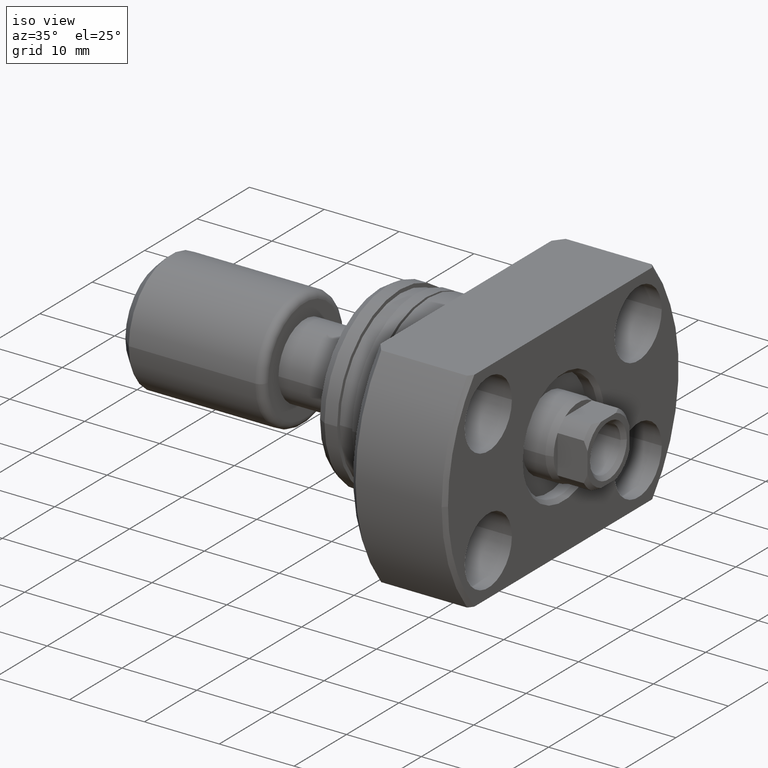
[diagram: clean part render]
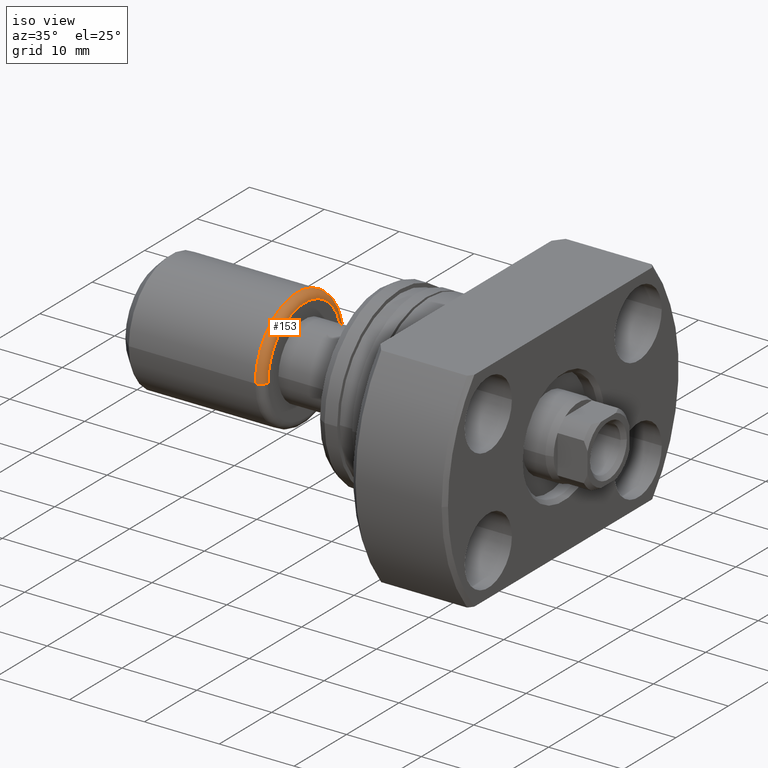
[diagram: same view with one face highlighted and labeled with its STEP entity id]
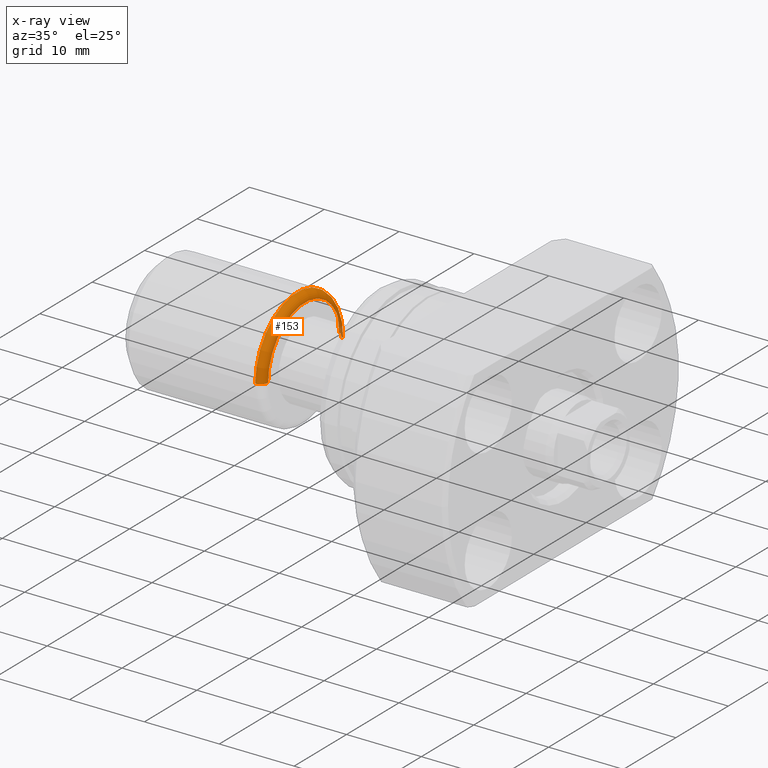
[diagram: x-ray of the same camera — body ghosted, the highlighted face saturated]
A machine part, iso view. The second image highlights one B-rep face of the part: STEP entity #153.
The next image is the same camera in x-ray: the body ghosted, the highlighted face saturated — about 2% of this face is hidden behind the body in this view.
In plain terms, the highlighted toroidal blend (fillet) surface has major radius 7 mm and minor (blend) radius 1 mm.
Its self-contained STEP definition (entity closure, byte-faithful):
#1 = DIRECTION ( 'NONE',  ( 1.069542322069065801E-17, -1.000000000000000000, 0.000000000000000000 ) ) ;
#153 = ADVANCED_FACE ( 'NONE', ( #205 ), #2859, .T. ) ;
#165 = CARTESIAN_POINT ( 'NONE',  ( 18.40000000000006253, 1.967957872607087643E-16, 0.000000000000000000 ) ) ;
#191 = CARTESIAN_POINT ( 'NONE',  ( 19.40000000000006253, 2.074912104813994331E-16, 0.000000000000000000 ) ) ;
#205 = FACE_OUTER_BOUND ( 'NONE', #2565, .T. ) ;
#346 = CIRCLE ( 'NONE', #393, 1.000000000000000888 ) ;
#352 = CARTESIAN_POINT ( 'NONE',  ( 19.40000000000006253, 6.999999999999996447, 9.184850993605144000E-16 ) ) ;
#393 = AXIS2_PLACEMENT_3D ( 'NONE', #2020, #2316, #538 ) ;
#491 = AXIS2_PLACEMENT_3D ( 'NONE', #2556, #770, #1589 ) ;
#538 = DIRECTION ( 'NONE',  ( -1.000000000000000000, 0.000000000000000000, 0.000000000000000000 ) ) ;
#630 = ORIENTED_EDGE ( 'NONE', *, *, #1885, .F. ) ;
#725 = CARTESIAN_POINT ( 'NONE',  ( 18.40000000000006253, 0.000000000000000000, 0.000000000000000000 ) ) ;
#770 = DIRECTION ( 'NONE',  ( 1.309811581274509052E-33, -1.224646799147353207E-16, 1.000000000000000000 ) ) ;
#1035 = CIRCLE ( 'NONE', #1769, 6.999999999999996447 ) ;
#1088 = AXIS2_PLACEMENT_3D ( 'NONE', #725, #2243, #1 ) ;
#1168 = DIRECTION ( 'NONE',  ( 0.000000000000000000, -1.000000000000000000, 0.000000000000000000 ) ) ;
#1223 = CARTESIAN_POINT ( 'NONE',  ( 18.40000000000006253, 7.999999999999996447, 9.797174393178821713E-16 ) ) ;
#1249 = ORIENTED_EDGE ( 'NONE', *, *, #1445, .T. ) ;
#1415 = ORIENTED_EDGE ( 'NONE', *, *, #2289, .T. ) ;
#1445 = EDGE_CURVE ( 'NONE', #2105, #1744, #2775, .T. ) ;
#1484 = DIRECTION ( 'NONE',  ( -1.000000000000000000, -1.069542322069065801E-17, -0.000000000000000000 ) ) ;
#1589 = DIRECTION ( 'NONE',  ( 0.000000000000000000, -1.000000000000000000, -1.224646799147353454E-16 ) ) ;
#1607 = CIRCLE ( 'NONE', #2253, 7.999999999999996447 ) ;
#1651 = VERTEX_POINT ( 'NONE', #1875 ) ;
#1744 = VERTEX_POINT ( 'NONE', #1223 ) ;
#1769 = AXIS2_PLACEMENT_3D ( 'NONE', #191, #1484, #1906 ) ;
#1819 = ORIENTED_EDGE ( 'NONE', *, *, #3041, .F. ) ;
#1829 = CARTESIAN_POINT ( 'NONE',  ( 19.40000000000006253, -6.999999999999996447, 0.000000000000000000 ) ) ;
#1875 = CARTESIAN_POINT ( 'NONE',  ( 18.40000000000006253, -7.999999999999996447, 0.000000000000000000 ) ) ;
#1885 = EDGE_CURVE ( 'NONE', #2538, #1651, #346, .T. ) ;
#1906 = DIRECTION ( 'NONE',  ( 0.000000000000000000, -1.000000000000000000, 0.000000000000000000 ) ) ;
#2020 = CARTESIAN_POINT ( 'NONE',  ( 18.40000000000006253, -6.999999999999996447, 0.000000000000000000 ) ) ;
#2105 = VERTEX_POINT ( 'NONE', #352 ) ;
#2243 = DIRECTION ( 'NONE',  ( -1.000000000000000000, -1.069542322069065801E-17, -0.000000000000000000 ) ) ;
#2253 = AXIS2_PLACEMENT_3D ( 'NONE', #165, #2415, #1168 ) ;
#2289 = EDGE_CURVE ( 'NONE', #2538, #2105, #1035, .T. ) ;
#2316 = DIRECTION ( 'NONE',  ( 0.000000000000000000, 0.000000000000000000, -1.000000000000000000 ) ) ;
#2415 = DIRECTION ( 'NONE',  ( -1.000000000000000000, -1.069542322069065801E-17, -0.000000000000000000 ) ) ;
#2538 = VERTEX_POINT ( 'NONE', #1829 ) ;
#2556 = CARTESIAN_POINT ( 'NONE',  ( 18.40000000000006253, 6.999999999999996447, 8.572527594031468259E-16 ) ) ;
#2565 = EDGE_LOOP ( 'NONE', ( #1415, #1249, #1819, #630 ) ) ;
#2775 = CIRCLE ( 'NONE', #491, 1.000000000000000000 ) ;
#2859 = TOROIDAL_SURFACE ( 'NONE', #1088, 6.999999999999996447, 1.000000000000000444 ) ;
#3041 = EDGE_CURVE ( 'NONE', #1651, #1744, #1607, .T. ) ;